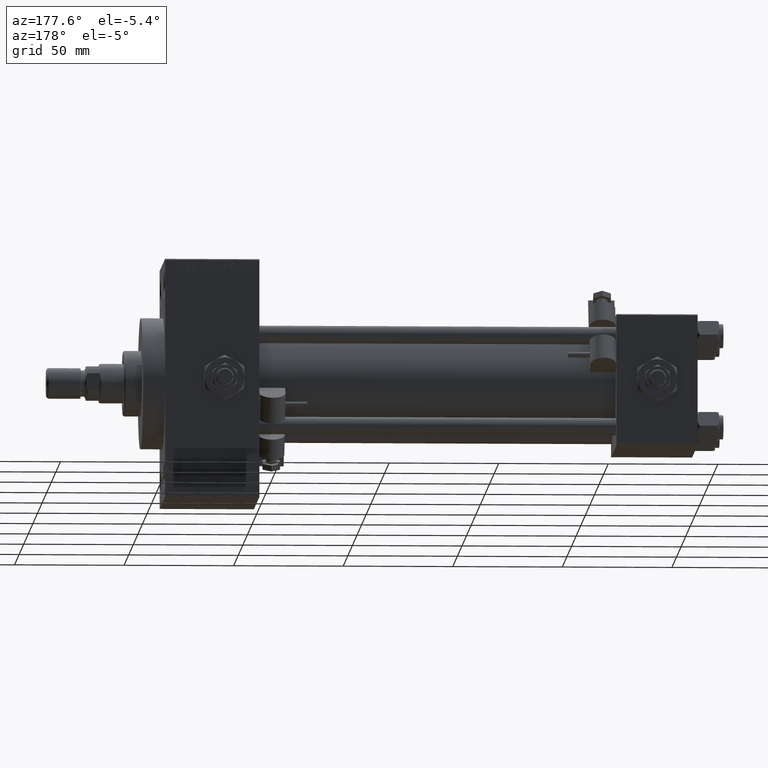
[diagram: clean part render]
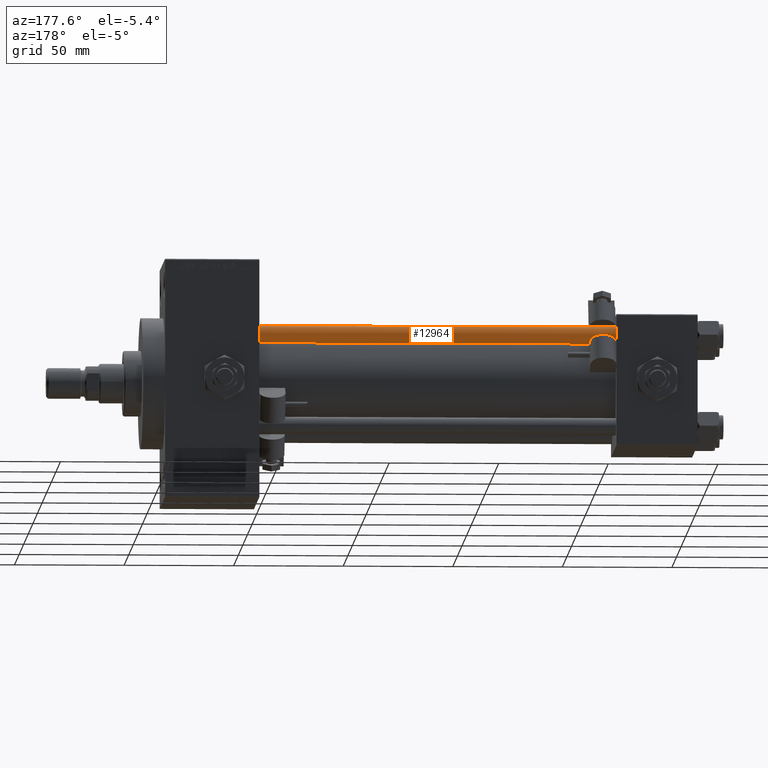
[diagram: same view with one face highlighted and labeled with its STEP entity id]
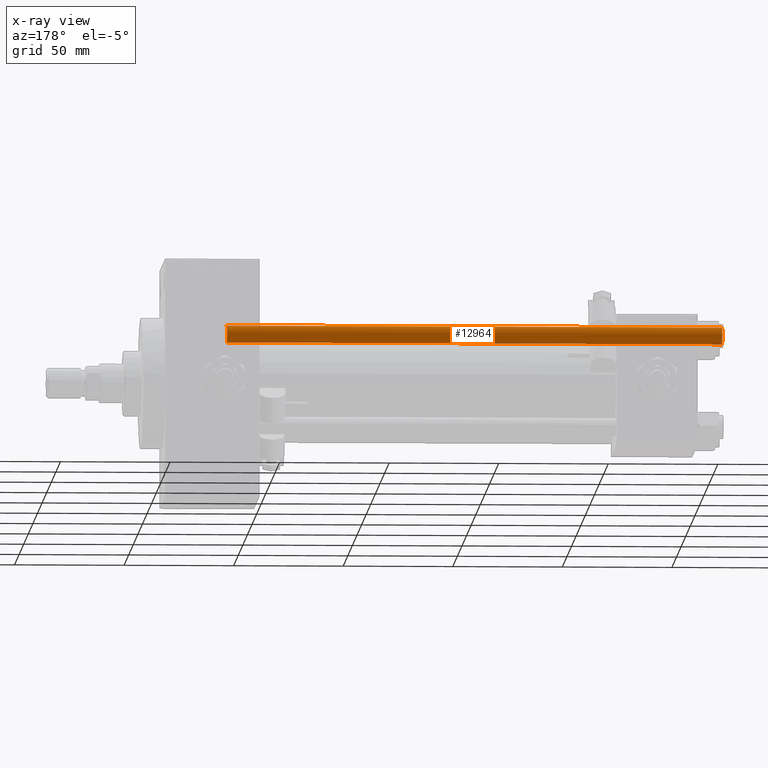
[diagram: x-ray of the same camera — body ghosted, the highlighted face saturated]
A machine part, auxiliary view. The second image highlights one B-rep face of the part: STEP entity #12964.
The next image is the same camera in x-ray: the body ghosted, the highlighted face saturated — about 0% of this face is hidden behind the body in this view.
In plain terms, the highlighted cylindrical surface (edge-blend (fillet) strip) has radius 4 mm, axis along (-1, -0, 0).
Its self-contained STEP definition (entity closure, byte-faithful):
#862 = VERTEX_POINT ( 'NONE', #4815 ) ;
#890 = ORIENTED_EDGE ( 'NONE', *, *, #47874, .T. ) ;
#3299 = FACE_OUTER_BOUND ( 'NONE', #10559, .T. ) ;
#3542 = CARTESIAN_POINT ( 'NONE',  ( 0.000000000000000000, 0.000000000000000000, 226.5000000000001421 ) ) ;
#3809 = DIRECTION ( 'NONE',  ( -1.000000000000000000, 0.000000000000000000, 0.000000000000000000 ) ) ;
#4300 = DIRECTION ( 'NONE',  ( -0.000000000000000000, -0.000000000000000000, -1.000000000000000000 ) ) ;
#4815 = CARTESIAN_POINT ( 'NONE',  ( -4.000000000000000000, 0.000000000000000000, 226.5000000000001421 ) ) ;
#7455 = CARTESIAN_POINT ( 'NONE',  ( -4.000000000000000000, 0.000000000000000000, 0.5000000000002224887 ) ) ;
#8322 = DIRECTION ( 'NONE',  ( -0.000000000000000000, -0.000000000000000000, -1.000000000000000000 ) ) ;
#8341 = AXIS2_PLACEMENT_3D ( 'NONE', #3542, #15617, #49797 ) ;
#10123 = CARTESIAN_POINT ( 'NONE',  ( 4.000000000000000000, 4.898587196589411843E-16, 227.0000000000000000 ) ) ;
#10559 = EDGE_LOOP ( 'NONE', ( #44544, #25855, #890, #38654 ) ) ;
#12734 = CARTESIAN_POINT ( 'NONE',  ( 4.000000000000000000, 4.898587196589411843E-16, 0.5000000000002224887 ) ) ;
#12964 = ADVANCED_FACE ( 'NONE', ( #3299 ), #31046, .T. ) ;
#15617 = DIRECTION ( 'NONE',  ( 0.000000000000000000, 0.000000000000000000, -1.000000000000000000 ) ) ;
#16802 = DIRECTION ( 'NONE',  ( 1.000000000000000000, 0.000000000000000000, 0.000000000000000000 ) ) ;
#17325 = DIRECTION ( 'NONE',  ( -0.000000000000000000, -0.000000000000000000, -1.000000000000000000 ) ) ;
#19251 = VERTEX_POINT ( 'NONE', #12734 ) ;
#20755 = CIRCLE ( 'NONE', #33077, 4.000000000000000000 ) ;
#20915 = DIRECTION ( 'NONE',  ( -0.000000000000000000, -0.000000000000000000, 1.000000000000000000 ) ) ;
#21162 = CARTESIAN_POINT ( 'NONE',  ( 0.000000000000000000, 0.000000000000000000, 0.5000000000002224887 ) ) ;
#21295 = VERTEX_POINT ( 'NONE', #47165 ) ;
#25034 = LINE ( 'NONE', #10123, #36888 ) ;
#25855 = ORIENTED_EDGE ( 'NONE', *, *, #42145, .T. ) ;
#28267 = AXIS2_PLACEMENT_3D ( 'NONE', #39019, #4300, #3809 ) ;
#28394 = EDGE_CURVE ( 'NONE', #862, #48459, #32478, .T. ) ;
#31046 = CYLINDRICAL_SURFACE ( 'NONE', #28267, 4.000000000000000000 ) ;
#32478 = LINE ( 'NONE', #48149, #38146 ) ;
#33077 = AXIS2_PLACEMENT_3D ( 'NONE', #21162, #20915, #16802 ) ;
#36888 = VECTOR ( 'NONE', #17325, 1000.000000000000000 ) ;
#38146 = VECTOR ( 'NONE', #8322, 1000.000000000000000 ) ;
#38654 = ORIENTED_EDGE ( 'NONE', *, *, #28394, .F. ) ;
#39019 = CARTESIAN_POINT ( 'NONE',  ( 0.000000000000000000, 0.000000000000000000, 227.0000000000000000 ) ) ;
#42145 = EDGE_CURVE ( 'NONE', #21295, #19251, #25034, .T. ) ;
#44544 = ORIENTED_EDGE ( 'NONE', *, *, #45932, .T. ) ;
#45932 = EDGE_CURVE ( 'NONE', #862, #21295, #46940, .T. ) ;
#46940 = CIRCLE ( 'NONE', #8341, 4.000000000000000000 ) ;
#47165 = CARTESIAN_POINT ( 'NONE',  ( 4.000000000000000000, 4.898587196589411843E-16, 226.5000000000001421 ) ) ;
#47874 = EDGE_CURVE ( 'NONE', #19251, #48459, #20755, .T. ) ;
#48149 = CARTESIAN_POINT ( 'NONE',  ( -4.000000000000000000, 0.000000000000000000, 227.0000000000000000 ) ) ;
#48459 = VERTEX_POINT ( 'NONE', #7455 ) ;
#49797 = DIRECTION ( 'NONE',  ( 1.000000000000000000, 0.000000000000000000, 0.000000000000000000 ) ) ;